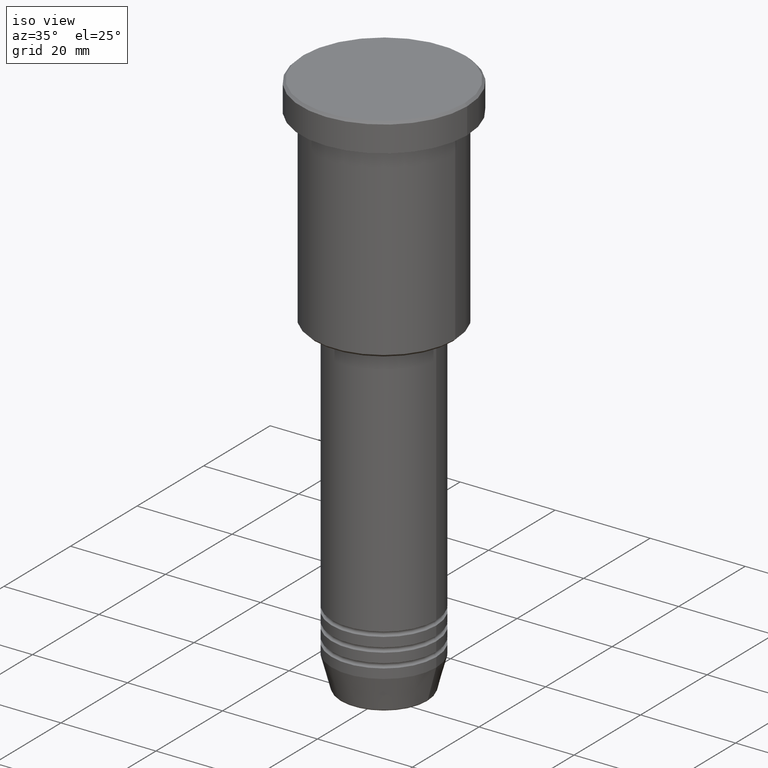
[diagram: clean part render]
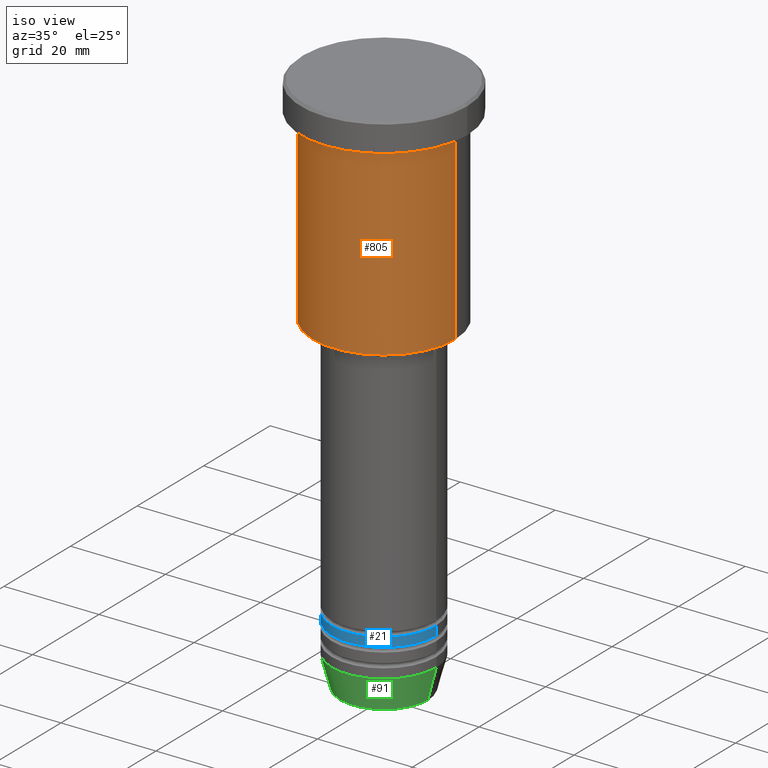
[diagram: same view with three faces highlighted in distinct colors, each labeled with its STEP entity id]
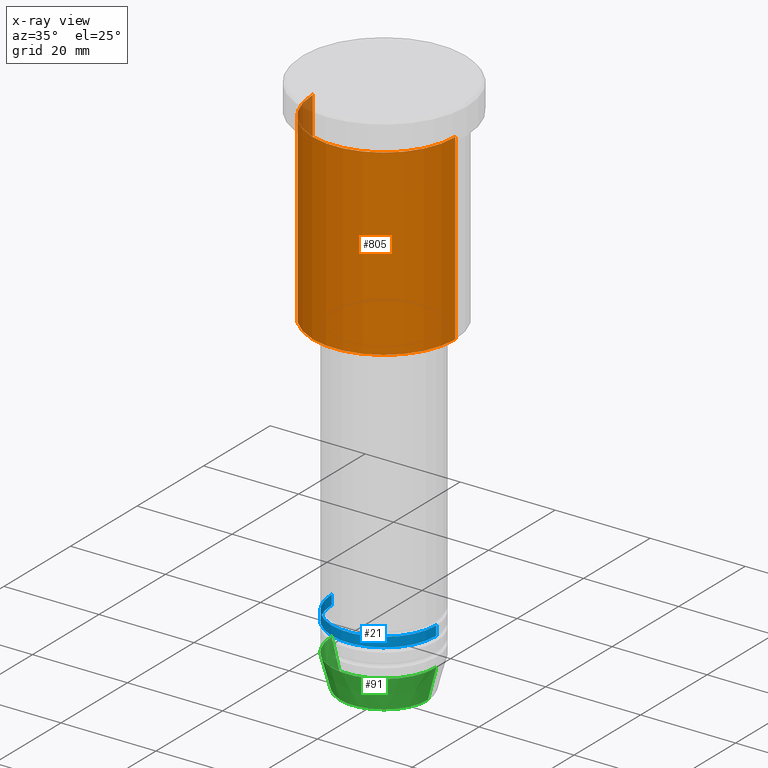
[diagram: x-ray of the same camera — body ghosted, the three highlighted faces saturated]
A machine part, iso view with three faces highlighted in distinct colors.
The next image is the same camera in x-ray (body ghosted, the three faces saturated) — at least one of them is partly hidden behind the body in this view.
Their STEP definitions:

[orange] entity #805 — the highlighted cylindrical surface (partial cylindrical patch) has radius 15 mm, axis along (-0, -0, 1).
#27 = VECTOR ( 'NONE', #102, 1000.000000000000000 ) ;
#31 = CARTESIAN_POINT ( 'NONE',  ( 0.000000000000000000, 0.000000000000000000, -45.50000000000002842 ) ) ;
#102 = DIRECTION ( 'NONE',  ( -0.000000000000000000, -0.000000000000000000, 1.000000000000000000 ) ) ;
#138 = ORIENTED_EDGE ( 'NONE', *, *, #154, .F. ) ;
#154 = EDGE_CURVE ( 'NONE', #1137, #945, #660, .T. ) ;
#248 = CARTESIAN_POINT ( 'NONE',  ( -15.00000000000000000, 1.836970198721029589E-15, -45.50000000000002842 ) ) ;
#272 = VERTEX_POINT ( 'NONE', #775 ) ;
#299 = EDGE_CURVE ( 'NONE', #820, #272, #361, .T. ) ;
#317 = AXIS2_PLACEMENT_3D ( 'NONE', #1109, #561, #668 ) ;
#337 = ORIENTED_EDGE ( 'NONE', *, *, #299, .T. ) ;
#361 = CIRCLE ( 'NONE', #963, 15.00000000000000000 ) ;
#398 = EDGE_CURVE ( 'NONE', #272, #945, #897, .T. ) ;
#428 = DIRECTION ( 'NONE',  ( 1.000000000000000000, 0.000000000000000000, 0.000000000000000000 ) ) ;
#526 = CARTESIAN_POINT ( 'NONE',  ( 15.00000000000000000, 0.000000000000000000, 0.000000000000000000 ) ) ;
#559 = CARTESIAN_POINT ( 'NONE',  ( 15.00000000000000000, 0.000000000000000000, -6.999999999999995559 ) ) ;
#561 = DIRECTION ( 'NONE',  ( -0.000000000000000000, -0.000000000000000000, 1.000000000000000000 ) ) ;
#579 = ORIENTED_EDGE ( 'NONE', *, *, #398, .T. ) ;
#598 = CYLINDRICAL_SURFACE ( 'NONE', #1132, 15.00000000000000000 ) ;
#612 = DIRECTION ( 'NONE',  ( -0.000000000000000000, -0.000000000000000000, 1.000000000000000000 ) ) ;
#645 = VECTOR ( 'NONE', #881, 1000.000000000000000 ) ;
#660 = CIRCLE ( 'NONE', #317, 15.00000000000000000 ) ;
#668 = DIRECTION ( 'NONE',  ( 1.000000000000000000, 0.000000000000000000, 0.000000000000000000 ) ) ;
#689 = CARTESIAN_POINT ( 'NONE',  ( 0.000000000000000000, 0.000000000000000000, 0.000000000000000000 ) ) ;
#700 = EDGE_CURVE ( 'NONE', #820, #1137, #934, .T. ) ;
#775 = CARTESIAN_POINT ( 'NONE',  ( 15.00000000000000000, 0.000000000000000000, -45.50000000000002842 ) ) ;
#805 = ADVANCED_FACE ( 'NONE', ( #876 ), #598, .T. ) ;
#820 = VERTEX_POINT ( 'NONE', #248 ) ;
#839 = ORIENTED_EDGE ( 'NONE', *, *, #700, .F. ) ;
#876 = FACE_OUTER_BOUND ( 'NONE', #904, .T. ) ;
#881 = DIRECTION ( 'NONE',  ( -0.000000000000000000, -0.000000000000000000, 1.000000000000000000 ) ) ;
#897 = LINE ( 'NONE', #526, #645 ) ;
#904 = EDGE_LOOP ( 'NONE', ( #839, #337, #579, #138 ) ) ;
#934 = LINE ( 'NONE', #948, #27 ) ;
#945 = VERTEX_POINT ( 'NONE', #559 ) ;
#948 = CARTESIAN_POINT ( 'NONE',  ( -15.00000000000000000, 1.836970198721029589E-15, 0.000000000000000000 ) ) ;
#963 = AXIS2_PLACEMENT_3D ( 'NONE', #31, #612, #972 ) ;
#972 = DIRECTION ( 'NONE',  ( -1.000000000000000000, 0.000000000000000000, 0.000000000000000000 ) ) ;
#977 = DIRECTION ( 'NONE',  ( -0.000000000000000000, -0.000000000000000000, 1.000000000000000000 ) ) ;
#1109 = CARTESIAN_POINT ( 'NONE',  ( 0.000000000000000000, 0.000000000000000000, -6.999999999999995559 ) ) ;
#1129 = CARTESIAN_POINT ( 'NONE',  ( -15.00000000000000000, 1.836970198721029589E-15, -6.999999999999995559 ) ) ;
#1132 = AXIS2_PLACEMENT_3D ( 'NONE', #689, #977, #428 ) ;
#1137 = VERTEX_POINT ( 'NONE', #1129 ) ;

[blue] entity #21 — the highlighted cylindrical surface (partial cylindrical patch) has radius 11 mm, axis along (-0, -0, 1).
#21 = ADVANCED_FACE ( 'NONE', ( #894 ), #962, .T. ) ;
#23 = CARTESIAN_POINT ( 'NONE',  ( -11.00000000000000000, 1.347111479062088405E-15, 0.000000000000000000 ) ) ;
#45 = VECTOR ( 'NONE', #933, 1000.000000000000000 ) ;
#83 = VERTEX_POINT ( 'NONE', #303 ) ;
#158 = EDGE_LOOP ( 'NONE', ( #488, #994, #608, #166 ) ) ;
#166 = ORIENTED_EDGE ( 'NONE', *, *, #578, .F. ) ;
#196 = LINE ( 'NONE', #1106, #45 ) ;
#219 = DIRECTION ( 'NONE',  ( 1.000000000000000000, 0.000000000000000000, 0.000000000000000000 ) ) ;
#257 = DIRECTION ( 'NONE',  ( 1.000000000000000000, 0.000000000000000000, 0.000000000000000000 ) ) ;
#303 = CARTESIAN_POINT ( 'NONE',  ( -11.00000000000000000, 1.347111479062088405E-15, -100.9999999999999858 ) ) ;
#310 = VERTEX_POINT ( 'NONE', #1122 ) ;
#320 = CIRCLE ( 'NONE', #1172, 11.00000000000000000 ) ;
#353 = DIRECTION ( 'NONE',  ( -0.000000000000000000, -0.000000000000000000, 1.000000000000000000 ) ) ;
#396 = VERTEX_POINT ( 'NONE', #539 ) ;
#412 = EDGE_CURVE ( 'NONE', #310, #964, #944, .T. ) ;
#436 = AXIS2_PLACEMENT_3D ( 'NONE', #639, #736, #818 ) ;
#488 = ORIENTED_EDGE ( 'NONE', *, *, #1054, .F. ) ;
#539 = CARTESIAN_POINT ( 'NONE',  ( 11.00000000000000000, 0.000000000000000000, -100.9999999999999858 ) ) ;
#564 = DIRECTION ( 'NONE',  ( -0.000000000000000000, -0.000000000000000000, 1.000000000000000000 ) ) ;
#578 = EDGE_CURVE ( 'NONE', #83, #396, #320, .T. ) ;
#608 = ORIENTED_EDGE ( 'NONE', *, *, #1045, .T. ) ;
#639 = CARTESIAN_POINT ( 'NONE',  ( 0.000000000000000000, 0.000000000000000000, -102.9999999999999858 ) ) ;
#648 = VECTOR ( 'NONE', #746, 1000.000000000000000 ) ;
#654 = CARTESIAN_POINT ( 'NONE',  ( 0.000000000000000000, 0.000000000000000000, -100.9999999999999858 ) ) ;
#736 = DIRECTION ( 'NONE',  ( -0.000000000000000000, -0.000000000000000000, 1.000000000000000000 ) ) ;
#746 = DIRECTION ( 'NONE',  ( -0.000000000000000000, -0.000000000000000000, 1.000000000000000000 ) ) ;
#804 = CARTESIAN_POINT ( 'NONE',  ( 0.000000000000000000, 0.000000000000000000, 0.000000000000000000 ) ) ;
#818 = DIRECTION ( 'NONE',  ( 1.000000000000000000, 0.000000000000000000, 0.000000000000000000 ) ) ;
#894 = FACE_OUTER_BOUND ( 'NONE', #158, .T. ) ;
#933 = DIRECTION ( 'NONE',  ( -0.000000000000000000, -0.000000000000000000, 1.000000000000000000 ) ) ;
#944 = CIRCLE ( 'NONE', #436, 11.00000000000000000 ) ;
#962 = CYLINDRICAL_SURFACE ( 'NONE', #1108, 11.00000000000000000 ) ;
#964 = VERTEX_POINT ( 'NONE', #1000 ) ;
#994 = ORIENTED_EDGE ( 'NONE', *, *, #412, .T. ) ;
#1000 = CARTESIAN_POINT ( 'NONE',  ( 11.00000000000000000, 0.000000000000000000, -102.9999999999999858 ) ) ;
#1045 = EDGE_CURVE ( 'NONE', #964, #396, #196, .T. ) ;
#1054 = EDGE_CURVE ( 'NONE', #310, #83, #1102, .T. ) ;
#1102 = LINE ( 'NONE', #23, #648 ) ;
#1106 = CARTESIAN_POINT ( 'NONE',  ( 11.00000000000000000, 0.000000000000000000, 0.000000000000000000 ) ) ;
#1108 = AXIS2_PLACEMENT_3D ( 'NONE', #804, #353, #257 ) ;
#1122 = CARTESIAN_POINT ( 'NONE',  ( -11.00000000000000000, 1.347111479062088405E-15, -102.9999999999999858 ) ) ;
#1172 = AXIS2_PLACEMENT_3D ( 'NONE', #654, #564, #219 ) ;

[green] entity #91 — the highlighted conical surface has half-angle 15 deg.
#18 = EDGE_CURVE ( 'NONE', #675, #1123, #1157, .T. ) ;
#78 = VERTEX_POINT ( 'NONE', #1020 ) ;
#91 = ADVANCED_FACE ( 'NONE', ( #119 ), #240, .T. ) ;
#98 = DIRECTION ( 'NONE',  ( 1.000000000000000000, 0.000000000000000000, 0.000000000000000000 ) ) ;
#119 = FACE_OUTER_BOUND ( 'NONE', #386, .T. ) ;
#141 = CARTESIAN_POINT ( 'NONE',  ( 11.00000000000000000, 0.000000000000000000, -109.0000000000000142 ) ) ;
#167 = AXIS2_PLACEMENT_3D ( 'NONE', #434, #1047, #1134 ) ;
#240 = CONICAL_SURFACE ( 'NONE', #907, 11.00000000000000000, 0.2617993877991500740 ) ;
#251 = VERTEX_POINT ( 'NONE', #959 ) ;
#312 = CARTESIAN_POINT ( 'NONE',  ( -11.00000000000000000, 1.347111479062088405E-15, -109.0000000000000142 ) ) ;
#363 = CIRCLE ( 'NONE', #167, 11.00000000000000000 ) ;
#374 = DIRECTION ( 'NONE',  ( -0.000000000000000000, -0.000000000000000000, 1.000000000000000000 ) ) ;
#386 = EDGE_LOOP ( 'NONE', ( #504, #875, #976, #562 ) ) ;
#401 = AXIS2_PLACEMENT_3D ( 'NONE', #447, #374, #712 ) ;
#434 = CARTESIAN_POINT ( 'NONE',  ( 0.000000000000000000, 0.000000000000000000, -109.0000000000000142 ) ) ;
#447 = CARTESIAN_POINT ( 'NONE',  ( 0.000000000000000000, 0.000000000000000000, -115.6294095225512564 ) ) ;
#485 = CARTESIAN_POINT ( 'NONE',  ( 0.000000000000000000, 0.000000000000000000, -109.0000000000000142 ) ) ;
#490 = CARTESIAN_POINT ( 'NONE',  ( 9.223655072137191269, 0.000000000000000000, -115.6294095225512564 ) ) ;
#504 = ORIENTED_EDGE ( 'NONE', *, *, #716, .F. ) ;
#562 = ORIENTED_EDGE ( 'NONE', *, *, #747, .F. ) ;
#565 = DIRECTION ( 'NONE',  ( -0.000000000000000000, -0.000000000000000000, 1.000000000000000000 ) ) ;
#571 = CIRCLE ( 'NONE', #401, 9.223655072137191269 ) ;
#675 = VERTEX_POINT ( 'NONE', #490 ) ;
#676 = DIRECTION ( 'NONE',  ( -0.2588190451025213501, 3.169619151431772337E-17, 0.9659258262890680902 ) ) ;
#712 = DIRECTION ( 'NONE',  ( 1.000000000000000000, 0.000000000000000000, 0.000000000000000000 ) ) ;
#716 = EDGE_CURVE ( 'NONE', #251, #78, #1117, .T. ) ;
#747 = EDGE_CURVE ( 'NONE', #78, #1123, #363, .T. ) ;
#792 = VECTOR ( 'NONE', #809, 1000.000000000000000 ) ;
#809 = DIRECTION ( 'NONE',  ( 0.2588190451025213501, 0.000000000000000000, 0.9659258262890680902 ) ) ;
#867 = VECTOR ( 'NONE', #676, 1000.000000000000000 ) ;
#875 = ORIENTED_EDGE ( 'NONE', *, *, #913, .T. ) ;
#907 = AXIS2_PLACEMENT_3D ( 'NONE', #485, #565, #98 ) ;
#913 = EDGE_CURVE ( 'NONE', #251, #675, #571, .T. ) ;
#959 = CARTESIAN_POINT ( 'NONE',  ( -9.223655072137191269, 1.238341722557647202E-15, -115.6294095225512564 ) ) ;
#975 = CARTESIAN_POINT ( 'NONE',  ( 11.00000000000000000, 0.000000000000000000, -109.0000000000000142 ) ) ;
#976 = ORIENTED_EDGE ( 'NONE', *, *, #18, .T. ) ;
#1020 = CARTESIAN_POINT ( 'NONE',  ( -11.00000000000000000, 1.347111479062088405E-15, -109.0000000000000142 ) ) ;
#1047 = DIRECTION ( 'NONE',  ( -0.000000000000000000, -0.000000000000000000, 1.000000000000000000 ) ) ;
#1117 = LINE ( 'NONE', #312, #867 ) ;
#1123 = VERTEX_POINT ( 'NONE', #141 ) ;
#1134 = DIRECTION ( 'NONE',  ( 1.000000000000000000, 0.000000000000000000, 0.000000000000000000 ) ) ;
#1157 = LINE ( 'NONE', #975, #792 ) ;